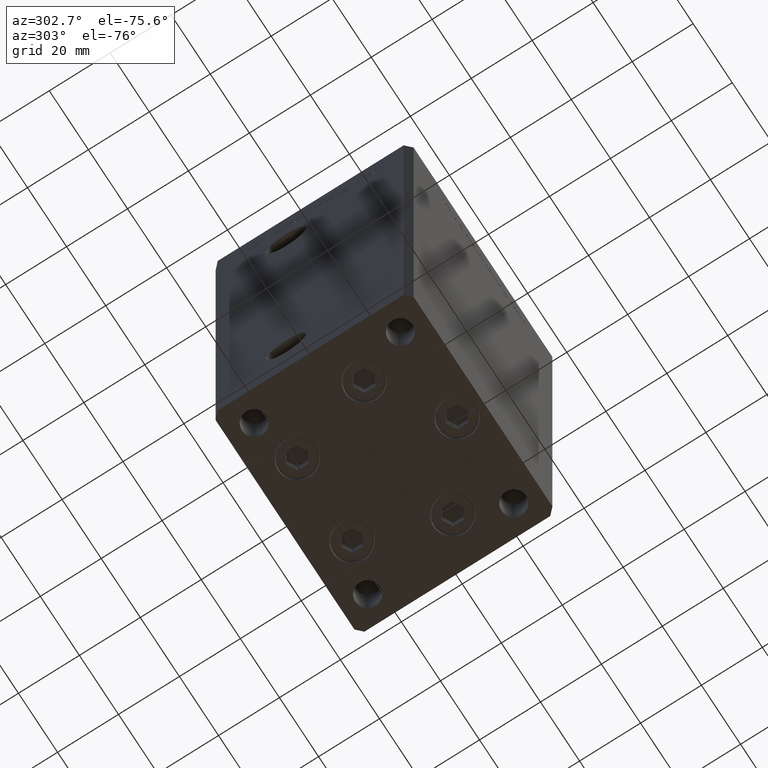
[diagram: clean part render]
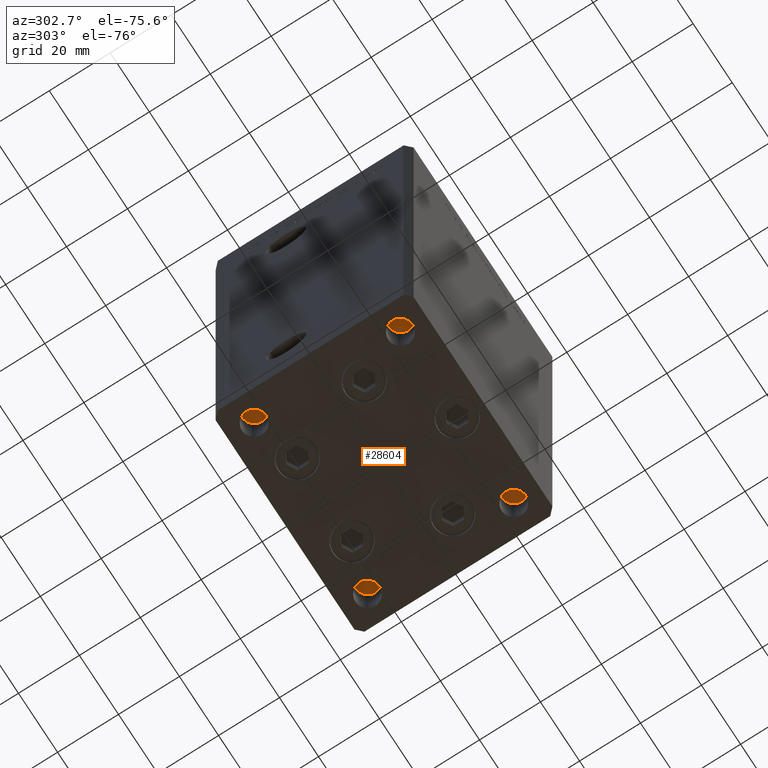
[diagram: same view with one face highlighted and labeled with its STEP entity id]
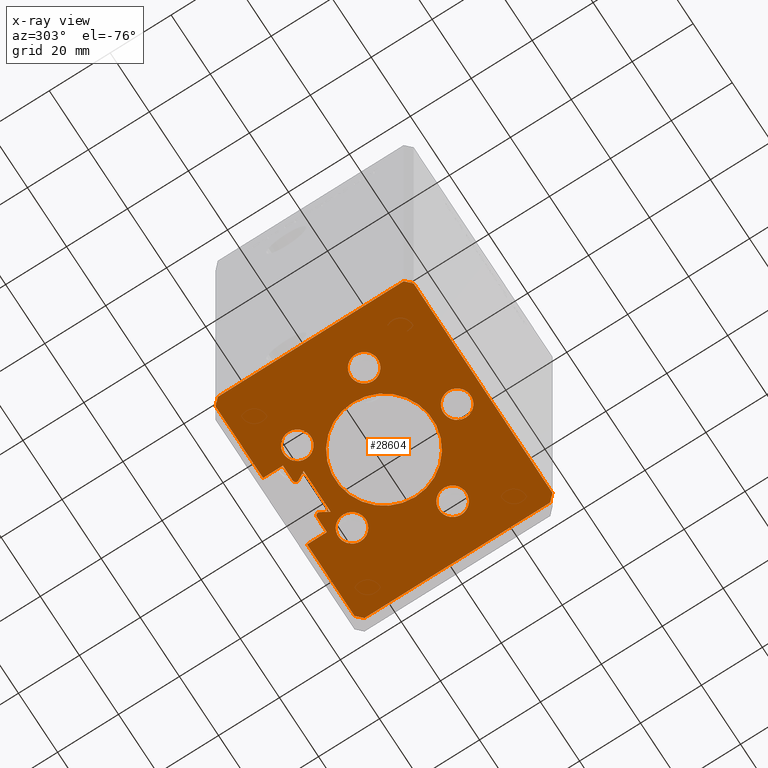
[diagram: x-ray of the same camera — body ghosted, the highlighted face saturated]
A machine part, auxiliary view. The second image highlights one B-rep face of the part: STEP entity #28604.
The next image is the same camera in x-ray: the body ghosted, the highlighted face saturated — about 0% of this face is hidden behind the body in this view.
In plain terms, the highlighted planar face has unit normal (0, 0, -1).
Its self-contained STEP definition (entity closure, byte-faithful):
#251 = FACE_BOUND ( 'NONE', #13600, .T. ) ;
#467 = DIRECTION ( 'NONE',  ( -1.000000000000000000, 0.000000000000000000, 0.000000000000000000 ) ) ;
#476 = VERTEX_POINT ( 'NONE', #6852 ) ;
#747 = LINE ( 'NONE', #4969, #42247 ) ;
#997 = AXIS2_PLACEMENT_3D ( 'NONE', #1073, #9784, #28767 ) ;
#1043 = CARTESIAN_POINT ( 'NONE',  ( 11.25000000000000178, 32.49999999999999289, 0.000000000000000000 ) ) ;
#1073 = CARTESIAN_POINT ( 'NONE',  ( -13.99106857963322170, 19.50000000000000000, 0.000000000000000000 ) ) ;
#1217 = CARTESIAN_POINT ( 'NONE',  ( 37.50000000000000711, 30.50000000000000000, 0.000000000000000000 ) ) ;
#1678 = EDGE_CURVE ( 'NONE', #33688, #43908, #23742, .T. ) ;
#1870 = DIRECTION ( 'NONE',  ( -1.000000000000000000, 0.000000000000000000, 0.000000000000000000 ) ) ;
#1999 = VECTOR ( 'NONE', #34670, 1000.000000000000000 ) ;
#2464 = CIRCLE ( 'NONE', #20982, 4.500000000000000888 ) ;
#2887 = EDGE_CURVE ( 'NONE', #28781, #27880, #27443, .T. ) ;
#3190 = EDGE_CURVE ( 'NONE', #52018, #47734, #35563, .T. ) ;
#3620 = DIRECTION ( 'NONE',  ( -0.7071067811865474617, -0.7071067811865474617, 0.000000000000000000 ) ) ;
#3658 = EDGE_CURVE ( 'NONE', #42789, #13832, #51460, .T. ) ;
#3666 = CARTESIAN_POINT ( 'NONE',  ( 4.500000000000000000, -24.00000000000000000, 0.000000000000000000 ) ) ;
#3681 = ORIENTED_EDGE ( 'NONE', *, *, #18191, .T. ) ;
#4081 = CARTESIAN_POINT ( 'NONE',  ( -16.00000000000000000, 0.000000000000000000, 0.000000000000000000 ) ) ;
#4093 = DIRECTION ( 'NONE',  ( 1.000000000000000000, -0.000000000000000000, -0.000000000000000000 ) ) ;
#4212 = ORIENTED_EDGE ( 'NONE', *, *, #38080, .T. ) ;
#4282 = VERTEX_POINT ( 'NONE', #49196 ) ;
#4303 = CARTESIAN_POINT ( 'NONE',  ( 13.99106857963322170, 19.50000000000000000, 0.000000000000000000 ) ) ;
#4527 = VERTEX_POINT ( 'NONE', #37723 ) ;
#4782 = CARTESIAN_POINT ( 'NONE',  ( -18.12741699796951877, -8.000000000000000000, 0.000000000000000000 ) ) ;
#4911 = ORIENTED_EDGE ( 'NONE', *, *, #22882, .F. ) ;
#4965 = DIRECTION ( 'NONE',  ( 0.7071067811865474617, -0.7071067811865474617, 0.000000000000000000 ) ) ;
#4969 = CARTESIAN_POINT ( 'NONE',  ( 6.876153656360466826, 21.99999999999986855, 0.000000000000000000 ) ) ;
#5273 = EDGE_CURVE ( 'NONE', #5970, #4527, #747, .T. ) ;
#5492 = CIRCLE ( 'NONE', #39161, 4.500000000000000888 ) ;
#5583 = ORIENTED_EDGE ( 'NONE', *, *, #29261, .F. ) ;
#5711 = VECTOR ( 'NONE', #38093, 1000.000000000000000 ) ;
#5732 = EDGE_CURVE ( 'NONE', #45915, #18814, #44605, .T. ) ;
#5970 = VERTEX_POINT ( 'NONE', #51684 ) ;
#6198 = VECTOR ( 'NONE', #50599, 1000.000000000000114 ) ;
#6204 = DIRECTION ( 'NONE',  ( -1.000000000000000000, 0.000000000000000000, 0.000000000000000000 ) ) ;
#6852 = CARTESIAN_POINT ( 'NONE',  ( -5.250000000000000000, 25.06666666666599141, 0.000000000000000000 ) ) ;
#6854 = ORIENTED_EDGE ( 'NONE', *, *, #27635, .F. ) ;
#7062 = VERTEX_POINT ( 'NONE', #13688 ) ;
#7124 = VECTOR ( 'NONE', #42719, 1000.000000000000000 ) ;
#7175 = VERTEX_POINT ( 'NONE', #10784 ) ;
#7306 = VERTEX_POINT ( 'NONE', #28664 ) ;
#7345 = DIRECTION ( 'NONE',  ( -0.000000000000000000, 0.000000000000000000, 1.000000000000000000 ) ) ;
#7400 = ORIENTED_EDGE ( 'NONE', *, *, #45093, .F. ) ;
#7894 = LINE ( 'NONE', #32398, #14268 ) ;
#8034 = CARTESIAN_POINT ( 'NONE',  ( 18.12741699796951877, -8.000000000000000000, 0.000000000000000000 ) ) ;
#8301 = VERTEX_POINT ( 'NONE', #8034 ) ;
#8769 = ORIENTED_EDGE ( 'NONE', *, *, #5732, .T. ) ;
#8938 = DIRECTION ( 'NONE',  ( -0.4999999999999996114, 0.8660254037844388186, 0.000000000000000000 ) ) ;
#9458 = DIRECTION ( 'NONE',  ( 0.000000000000000000, 0.000000000000000000, -1.000000000000000000 ) ) ;
#9784 = DIRECTION ( 'NONE',  ( 0.000000000000000000, 0.000000000000000000, -1.000000000000000000 ) ) ;
#10310 = DIRECTION ( 'NONE',  ( 1.000000000000000000, 0.000000000000000000, 0.000000000000000000 ) ) ;
#10315 = CARTESIAN_POINT ( 'NONE',  ( -35.49999999999999289, -32.50000000000000000, 0.000000000000000000 ) ) ;
#10784 = CARTESIAN_POINT ( 'NONE',  ( 27.12741699796952233, -8.000000000000000000, 0.000000000000000000 ) ) ;
#10801 = DIRECTION ( 'NONE',  ( 0.000000000000000000, 0.000000000000000000, -1.000000000000000000 ) ) ;
#10933 = EDGE_CURVE ( 'NONE', #11437, #42789, #18436, .T. ) ;
#11274 = ORIENTED_EDGE ( 'NONE', *, *, #13093, .T. ) ;
#11408 = DIRECTION ( 'NONE',  ( -0.4999999999999995559, -0.8660254037844388186, -0.000000000000000000 ) ) ;
#11437 = VERTEX_POINT ( 'NONE', #46724 ) ;
#11481 = CARTESIAN_POINT ( 'NONE',  ( 9.491068579633221702, 19.50000000000000000, 0.000000000000000000 ) ) ;
#12353 = DIRECTION ( 'NONE',  ( 0.000000000000000000, 0.000000000000000000, -1.000000000000000000 ) ) ;
#12525 = VERTEX_POINT ( 'NONE', #25312 ) ;
#12785 = EDGE_LOOP ( 'NONE', ( #42997, #7400 ) ) ;
#13093 = EDGE_CURVE ( 'NONE', #27880, #34516, #23582, .T. ) ;
#13187 = CARTESIAN_POINT ( 'NONE',  ( 37.49999999999999289, -30.50000000000000000, 0.000000000000000000 ) ) ;
#13336 = LINE ( 'NONE', #29929, #32694 ) ;
#13600 = EDGE_LOOP ( 'NONE', ( #15644, #39558 ) ) ;
#13688 = CARTESIAN_POINT ( 'NONE',  ( 16.00000000000000000, 1.959434878635765131E-15, 0.000000000000000000 ) ) ;
#13832 = VERTEX_POINT ( 'NONE', #38647 ) ;
#14001 = ORIENTED_EDGE ( 'NONE', *, *, #26218, .T. ) ;
#14268 = VECTOR ( 'NONE', #4965, 1000.000000000000114 ) ;
#14292 = DIRECTION ( 'NONE',  ( 0.7071067811865500152, -0.7071067811865451302, 0.000000000000000000 ) ) ;
#14820 = ORIENTED_EDGE ( 'NONE', *, *, #35171, .T. ) ;
#14830 = CIRCLE ( 'NONE', #24121, 0.9333333333340008142 ) ;
#14897 = CARTESIAN_POINT ( 'NONE',  ( 11.25000000000000178, 25.99999999999999289, 0.000000000000000000 ) ) ;
#15106 = EDGE_LOOP ( 'NONE', ( #14001, #14820, #3681, #36360, #8769, #51253, #32286, #18659, #4212, #41757, #36304, #31409, #11274, #36972, #6854, #28368, #15826, #50160, #19854 ) ) ;
#15357 = AXIS2_PLACEMENT_3D ( 'NONE', #43738, #12353, #467 ) ;
#15615 = DIRECTION ( 'NONE',  ( 1.000000000000000000, 0.000000000000000000, 0.000000000000000000 ) ) ;
#15644 = ORIENTED_EDGE ( 'NONE', *, *, #21166, .F. ) ;
#15755 = CARTESIAN_POINT ( 'NONE',  ( 0.000000000000000000, 0.000000000000000000, 0.000000000000000000 ) ) ;
#15826 = ORIENTED_EDGE ( 'NONE', *, *, #3658, .F. ) ;
#16514 = VERTEX_POINT ( 'NONE', #27891 ) ;
#17291 = CARTESIAN_POINT ( 'NONE',  ( -11.25000000000000178, 32.49999999999999289, 0.000000000000000000 ) ) ;
#17710 = CIRCLE ( 'NONE', #20239, 0.9333333333340008142 ) ;
#18179 = CARTESIAN_POINT ( 'NONE',  ( -13.99106857963322170, 19.50000000000000000, 0.000000000000000000 ) ) ;
#18182 = CARTESIAN_POINT ( 'NONE',  ( 13.99106857963322170, 19.50000000000000000, 0.000000000000000000 ) ) ;
#18191 = EDGE_CURVE ( 'NONE', #33780, #476, #41508, .T. ) ;
#18436 = LINE ( 'NONE', #34511, #6198 ) ;
#18442 = DIRECTION ( 'NONE',  ( -1.000000000000000000, 0.000000000000000000, 0.000000000000000000 ) ) ;
#18659 = ORIENTED_EDGE ( 'NONE', *, *, #47662, .T. ) ;
#18660 = VERTEX_POINT ( 'NONE', #38732 ) ;
#18814 = VERTEX_POINT ( 'NONE', #38149 ) ;
#18942 = VECTOR ( 'NONE', #30081, 1000.000000000000000 ) ;
#19190 = DIRECTION ( 'NONE',  ( 1.000000000000000000, 0.000000000000000000, 0.000000000000000000 ) ) ;
#19207 = ORIENTED_EDGE ( 'NONE', *, *, #1678, .F. ) ;
#19230 = DIRECTION ( 'NONE',  ( -1.000000000000000000, 0.000000000000000000, 0.000000000000000000 ) ) ;
#19550 = CARTESIAN_POINT ( 'NONE',  ( -37.50000000000000711, 30.50000000000000000, 0.000000000000000000 ) ) ;
#19854 = ORIENTED_EDGE ( 'NONE', *, *, #29780, .F. ) ;
#20239 = AXIS2_PLACEMENT_3D ( 'NONE', #31689, #31956, #15615 ) ;
#20293 = FACE_BOUND ( 'NONE', #38056, .T. ) ;
#20814 = CARTESIAN_POINT ( 'NONE',  ( 0.000000000000000000, 0.000000000000000000, 0.000000000000000000 ) ) ;
#20974 = DIRECTION ( 'NONE',  ( 1.000000000000000000, 0.000000000000000000, 0.000000000000000000 ) ) ;
#20982 = AXIS2_PLACEMENT_3D ( 'NONE', #22011, #34409, #6204 ) ;
#21166 = EDGE_CURVE ( 'NONE', #8301, #7175, #45015, .T. ) ;
#21517 = VECTOR ( 'NONE', #24163, 1000.000000000000000 ) ;
#22011 = CARTESIAN_POINT ( 'NONE',  ( -22.62741699796951877, -8.000000000000000000, 0.000000000000000000 ) ) ;
#22150 = VERTEX_POINT ( 'NONE', #1043 ) ;
#22380 = CIRCLE ( 'NONE', #33335, 4.500000000000000888 ) ;
#22882 = EDGE_CURVE ( 'NONE', #43536, #16514, #5492, .T. ) ;
#22957 = ORIENTED_EDGE ( 'NONE', *, *, #31708, .F. ) ;
#22988 = CARTESIAN_POINT ( 'NONE',  ( 22.62741699796951877, -8.000000000000000000, 0.000000000000000000 ) ) ;
#23060 = CARTESIAN_POINT ( 'NONE',  ( 37.50000000000000711, 30.50000000000000000, 0.000000000000000000 ) ) ;
#23107 = DIRECTION ( 'NONE',  ( -1.000000000000000000, 0.000000000000000000, 0.000000000000000000 ) ) ;
#23582 = LINE ( 'NONE', #23060, #1999 ) ;
#23655 = CARTESIAN_POINT ( 'NONE',  ( 37.49999999999999289, -30.50000000000000000, 0.000000000000000000 ) ) ;
#23742 = CIRCLE ( 'NONE', #997, 4.499999999999997335 ) ;
#24121 = AXIS2_PLACEMENT_3D ( 'NONE', #50385, #46424, #10310 ) ;
#24129 = LINE ( 'NONE', #35743, #43044 ) ;
#24163 = DIRECTION ( 'NONE',  ( -1.000000000000000000, 0.000000000000000000, 0.000000000000000000 ) ) ;
#24196 = AXIS2_PLACEMENT_3D ( 'NONE', #15755, #43701, #19190 ) ;
#24370 = AXIS2_PLACEMENT_3D ( 'NONE', #30268, #9458, #38451 ) ;
#24415 = LINE ( 'NONE', #50877, #21517 ) ;
#25312 = CARTESIAN_POINT ( 'NONE',  ( 6.183333333334001480, 25.99999999999999289, 0.000000000000000000 ) ) ;
#25882 = DIRECTION ( 'NONE',  ( 0.000000000000000000, 0.000000000000000000, -1.000000000000000000 ) ) ;
#26121 = LINE ( 'NONE', #10315, #18942 ) ;
#26187 = ORIENTED_EDGE ( 'NONE', *, *, #36897, .F. ) ;
#26218 = EDGE_CURVE ( 'NONE', #38077, #47396, #47457, .T. ) ;
#26592 = EDGE_CURVE ( 'NONE', #34516, #44457, #38712, .T. ) ;
#26632 = CARTESIAN_POINT ( 'NONE',  ( -11.25000000000000178, 25.99999999999999289, 0.000000000000000000 ) ) ;
#26869 = DIRECTION ( 'NONE',  ( -1.000000000000000000, 0.000000000000000000, 0.000000000000000000 ) ) ;
#27443 = LINE ( 'NONE', #46451, #43137 ) ;
#27635 = EDGE_CURVE ( 'NONE', #18660, #44457, #26121, .T. ) ;
#27880 = VERTEX_POINT ( 'NONE', #1217 ) ;
#27891 = CARTESIAN_POINT ( 'NONE',  ( 18.49106857963322170, 19.50000000000000000, 0.000000000000000000 ) ) ;
#28119 = CARTESIAN_POINT ( 'NONE',  ( -6.183333333334001480, 25.99999999999999289, 0.000000000000000000 ) ) ;
#28251 = CARTESIAN_POINT ( 'NONE',  ( -6.876153656360466826, 21.99999999999986855, 0.000000000000000000 ) ) ;
#28368 = ORIENTED_EDGE ( 'NONE', *, *, #41173, .F. ) ;
#28604 = ADVANCED_FACE ( 'NONE', ( #20293, #36383, #251, #31650, #47737, #43780, #37424 ), #37687, .T. ) ;
#28664 = CARTESIAN_POINT ( 'NONE',  ( 11.25000000000000178, 25.99999999999999289, 0.000000000000000000 ) ) ;
#28767 = DIRECTION ( 'NONE',  ( -1.000000000000000000, 0.000000000000000000, 0.000000000000000000 ) ) ;
#28770 = CIRCLE ( 'NONE', #30425, 4.500000000000000888 ) ;
#28781 = VERTEX_POINT ( 'NONE', #43196 ) ;
#29079 = AXIS2_PLACEMENT_3D ( 'NONE', #20814, #45846, #49549 ) ;
#29261 = EDGE_CURVE ( 'NONE', #16514, #43536, #22380, .T. ) ;
#29585 = CARTESIAN_POINT ( 'NONE',  ( 22.62741699796951877, -8.000000000000000000, 0.000000000000000000 ) ) ;
#29780 = EDGE_CURVE ( 'NONE', #38077, #11437, #24415, .T. ) ;
#29929 = CARTESIAN_POINT ( 'NONE',  ( 6.183333333334001480, 25.99999999999999289, 0.000000000000000000 ) ) ;
#30081 = DIRECTION ( 'NONE',  ( 1.000000000000000000, 0.000000000000000000, 0.000000000000000000 ) ) ;
#30268 = CARTESIAN_POINT ( 'NONE',  ( 0.000000000000000000, -24.00000000000000000, 0.000000000000000000 ) ) ;
#30425 = AXIS2_PLACEMENT_3D ( 'NONE', #29585, #25882, #38027 ) ;
#31007 = CIRCLE ( 'NONE', #36065, 4.500000000000000000 ) ;
#31042 = VECTOR ( 'NONE', #34405, 1000.000000000000000 ) ;
#31216 = EDGE_CURVE ( 'NONE', #476, #45915, #14830, .T. ) ;
#31409 = ORIENTED_EDGE ( 'NONE', *, *, #2887, .T. ) ;
#31650 = FACE_BOUND ( 'NONE', #39616, .T. ) ;
#31689 = CARTESIAN_POINT ( 'NONE',  ( 6.183333333334001480, 25.06666666666599141, 0.000000000000000000 ) ) ;
#31708 = EDGE_CURVE ( 'NONE', #43908, #33688, #34203, .T. ) ;
#31956 = DIRECTION ( 'NONE',  ( -0.000000000000000000, -0.000000000000000000, -1.000000000000000000 ) ) ;
#32103 = DIRECTION ( 'NONE',  ( 1.000000000000000000, 0.000000000000000000, 0.000000000000000000 ) ) ;
#32286 = ORIENTED_EDGE ( 'NONE', *, *, #5273, .T. ) ;
#32398 = CARTESIAN_POINT ( 'NONE',  ( -37.49999999999999289, -30.50000000000000000, 0.000000000000000000 ) ) ;
#32694 = VECTOR ( 'NONE', #20974, 1000.000000000000000 ) ;
#32885 = CIRCLE ( 'NONE', #43002, 16.00000000000000000 ) ;
#33335 = AXIS2_PLACEMENT_3D ( 'NONE', #4303, #45420, #41203 ) ;
#33688 = VERTEX_POINT ( 'NONE', #39748 ) ;
#33705 = EDGE_CURVE ( 'NONE', #7062, #47417, #41017, .T. ) ;
#33780 = VERTEX_POINT ( 'NONE', #28119 ) ;
#34203 = CIRCLE ( 'NONE', #40938, 4.499999999999997335 ) ;
#34405 = DIRECTION ( 'NONE',  ( 0.000000000000000000, 1.000000000000000000, 0.000000000000000000 ) ) ;
#34409 = DIRECTION ( 'NONE',  ( 0.000000000000000000, 0.000000000000000000, -1.000000000000000000 ) ) ;
#34511 = CARTESIAN_POINT ( 'NONE',  ( -35.50000000000000000, 32.49999999999999289, 0.000000000000000000 ) ) ;
#34516 = VERTEX_POINT ( 'NONE', #13187 ) ;
#34670 = DIRECTION ( 'NONE',  ( -2.275047181608927644E-16, -1.000000000000000000, 0.000000000000000000 ) ) ;
#35052 = LINE ( 'NONE', #50863, #48128 ) ;
#35120 = DIRECTION ( 'NONE',  ( 2.275047181608927644E-16, -1.000000000000000000, 0.000000000000000000 ) ) ;
#35171 = EDGE_CURVE ( 'NONE', #47396, #33780, #45475, .T. ) ;
#35563 = CIRCLE ( 'NONE', #15357, 4.500000000000000888 ) ;
#35743 = CARTESIAN_POINT ( 'NONE',  ( 6.876153656360466826, 21.99999999999986855, 0.000000000000000000 ) ) ;
#36065 = AXIS2_PLACEMENT_3D ( 'NONE', #42629, #50542, #23107 ) ;
#36067 = CARTESIAN_POINT ( 'NONE',  ( 0.000000000000000000, 0.000000000000000000, 0.000000000000000000 ) ) ;
#36304 = ORIENTED_EDGE ( 'NONE', *, *, #51955, .F. ) ;
#36360 = ORIENTED_EDGE ( 'NONE', *, *, #31216, .T. ) ;
#36383 = FACE_BOUND ( 'NONE', #41465, .T. ) ;
#36468 = AXIS2_PLACEMENT_3D ( 'NONE', #50165, #48025, #51728 ) ;
#36881 = CARTESIAN_POINT ( 'NONE',  ( -5.375042956467945388, 24.59999999999899245, 0.000000000000000000 ) ) ;
#36897 = EDGE_CURVE ( 'NONE', #4282, #41030, #31007, .T. ) ;
#36972 = ORIENTED_EDGE ( 'NONE', *, *, #26592, .T. ) ;
#37424 = FACE_BOUND ( 'NONE', #41075, .T. ) ;
#37687 = PLANE ( 'NONE',  #29079 ) ;
#37723 = CARTESIAN_POINT ( 'NONE',  ( 5.375042956467947164, 24.59999999999899245, 0.000000000000000000 ) ) ;
#38027 = DIRECTION ( 'NONE',  ( -1.000000000000000000, 0.000000000000000000, 0.000000000000000000 ) ) ;
#38056 = EDGE_LOOP ( 'NONE', ( #19207, #22957 ) ) ;
#38077 = VERTEX_POINT ( 'NONE', #17291 ) ;
#38080 = EDGE_CURVE ( 'NONE', #12525, #7306, #13336, .T. ) ;
#38093 = DIRECTION ( 'NONE',  ( 1.000000000000000000, -0.000000000000000000, -0.000000000000000000 ) ) ;
#38108 = LINE ( 'NONE', #14897, #31042 ) ;
#38143 = EDGE_CURVE ( 'NONE', #7306, #22150, #38108, .T. ) ;
#38149 = CARTESIAN_POINT ( 'NONE',  ( -6.876153656360466826, 21.99999999999986855, 0.000000000000000000 ) ) ;
#38451 = DIRECTION ( 'NONE',  ( -1.000000000000000000, 0.000000000000000000, 0.000000000000000000 ) ) ;
#38647 = CARTESIAN_POINT ( 'NONE',  ( -37.49999999999999289, -30.50000000000000000, 0.000000000000000000 ) ) ;
#38712 = LINE ( 'NONE', #23655, #51766 ) ;
#38732 = CARTESIAN_POINT ( 'NONE',  ( -35.49999999999999289, -32.50000000000000000, 0.000000000000000000 ) ) ;
#39161 = AXIS2_PLACEMENT_3D ( 'NONE', #18182, #10801, #26869 ) ;
#39558 = ORIENTED_EDGE ( 'NONE', *, *, #51481, .F. ) ;
#39616 = EDGE_LOOP ( 'NONE', ( #26187, #46764 ) ) ;
#39748 = CARTESIAN_POINT ( 'NONE',  ( -18.49106857963321815, 19.50000000000000000, 0.000000000000000000 ) ) ;
#40938 = AXIS2_PLACEMENT_3D ( 'NONE', #18179, #46124, #18442 ) ;
#41017 = CIRCLE ( 'NONE', #24196, 16.00000000000000000 ) ;
#41030 = VERTEX_POINT ( 'NONE', #3666 ) ;
#41075 = EDGE_LOOP ( 'NONE', ( #50296, #43835 ) ) ;
#41173 = EDGE_CURVE ( 'NONE', #13832, #18660, #7894, .T. ) ;
#41203 = DIRECTION ( 'NONE',  ( -1.000000000000000000, 0.000000000000000000, 0.000000000000000000 ) ) ;
#41465 = EDGE_LOOP ( 'NONE', ( #4911, #5583 ) ) ;
#41508 = CIRCLE ( 'NONE', #36468, 0.9333333333340008142 ) ;
#41623 = AXIS2_PLACEMENT_3D ( 'NONE', #22988, #46442, #1870 ) ;
#41684 = CARTESIAN_POINT ( 'NONE',  ( -9.491068579633225255, 19.50000000000000000, 0.000000000000000000 ) ) ;
#41757 = ORIENTED_EDGE ( 'NONE', *, *, #38143, .T. ) ;
#42247 = VECTOR ( 'NONE', #8938, 1000.000000000000114 ) ;
#42629 = CARTESIAN_POINT ( 'NONE',  ( 0.000000000000000000, -24.00000000000000000, 0.000000000000000000 ) ) ;
#42719 = DIRECTION ( 'NONE',  ( -0.000000000000000000, -1.000000000000000000, -0.000000000000000000 ) ) ;
#42789 = VERTEX_POINT ( 'NONE', #45955 ) ;
#42997 = ORIENTED_EDGE ( 'NONE', *, *, #3190, .F. ) ;
#43002 = AXIS2_PLACEMENT_3D ( 'NONE', #36067, #7345, #32103 ) ;
#43044 = VECTOR ( 'NONE', #4093, 1000.000000000000000 ) ;
#43137 = VECTOR ( 'NONE', #14292, 1000.000000000000114 ) ;
#43196 = CARTESIAN_POINT ( 'NONE',  ( 35.50000000000000000, 32.49999999999999289, 0.000000000000000000 ) ) ;
#43536 = VERTEX_POINT ( 'NONE', #11481 ) ;
#43701 = DIRECTION ( 'NONE',  ( -0.000000000000000000, 0.000000000000000000, 1.000000000000000000 ) ) ;
#43738 = CARTESIAN_POINT ( 'NONE',  ( -22.62741699796951877, -8.000000000000000000, 0.000000000000000000 ) ) ;
#43780 = FACE_OUTER_BOUND ( 'NONE', #15106, .T. ) ;
#43835 = ORIENTED_EDGE ( 'NONE', *, *, #33705, .T. ) ;
#43908 = VERTEX_POINT ( 'NONE', #41684 ) ;
#44457 = VERTEX_POINT ( 'NONE', #47416 ) ;
#44605 = LINE ( 'NONE', #28251, #50654 ) ;
#45015 = CIRCLE ( 'NONE', #41623, 4.500000000000000888 ) ;
#45093 = EDGE_CURVE ( 'NONE', #47734, #52018, #2464, .T. ) ;
#45420 = DIRECTION ( 'NONE',  ( 0.000000000000000000, 0.000000000000000000, -1.000000000000000000 ) ) ;
#45475 = LINE ( 'NONE', #45995, #5711 ) ;
#45846 = DIRECTION ( 'NONE',  ( 0.000000000000000000, 0.000000000000000000, -1.000000000000000000 ) ) ;
#45915 = VERTEX_POINT ( 'NONE', #36881 ) ;
#45955 = CARTESIAN_POINT ( 'NONE',  ( -37.50000000000000711, 30.50000000000000000, 0.000000000000000000 ) ) ;
#45972 = EDGE_CURVE ( 'NONE', #41030, #4282, #46244, .T. ) ;
#45995 = CARTESIAN_POINT ( 'NONE',  ( -6.183333333334001480, 25.99999999999999289, 0.000000000000000000 ) ) ;
#46124 = DIRECTION ( 'NONE',  ( 0.000000000000000000, 0.000000000000000000, -1.000000000000000000 ) ) ;
#46244 = CIRCLE ( 'NONE', #24370, 4.500000000000000000 ) ;
#46424 = DIRECTION ( 'NONE',  ( -0.000000000000000000, -0.000000000000000000, -1.000000000000000000 ) ) ;
#46442 = DIRECTION ( 'NONE',  ( 0.000000000000000000, 0.000000000000000000, -1.000000000000000000 ) ) ;
#46451 = CARTESIAN_POINT ( 'NONE',  ( 35.50000000000000000, 32.49999999999999289, 0.000000000000000000 ) ) ;
#46724 = CARTESIAN_POINT ( 'NONE',  ( -35.50000000000000000, 32.49999999999999289, 0.000000000000000000 ) ) ;
#46764 = ORIENTED_EDGE ( 'NONE', *, *, #45972, .F. ) ;
#47396 = VERTEX_POINT ( 'NONE', #48119 ) ;
#47416 = CARTESIAN_POINT ( 'NONE',  ( 35.49999999999999289, -32.50000000000000000, 0.000000000000000000 ) ) ;
#47417 = VERTEX_POINT ( 'NONE', #4081 ) ;
#47457 = LINE ( 'NONE', #26632, #7124 ) ;
#47662 = EDGE_CURVE ( 'NONE', #4527, #12525, #17710, .T. ) ;
#47734 = VERTEX_POINT ( 'NONE', #4782 ) ;
#47737 = FACE_BOUND ( 'NONE', #12785, .T. ) ;
#48025 = DIRECTION ( 'NONE',  ( -0.000000000000000000, -0.000000000000000000, -1.000000000000000000 ) ) ;
#48092 = VECTOR ( 'NONE', #35120, 1000.000000000000000 ) ;
#48119 = CARTESIAN_POINT ( 'NONE',  ( -11.25000000000000178, 25.99999999999999289, 0.000000000000000000 ) ) ;
#48128 = VECTOR ( 'NONE', #19230, 1000.000000000000000 ) ;
#48735 = CARTESIAN_POINT ( 'NONE',  ( -27.12741699796952233, -8.000000000000000000, 0.000000000000000000 ) ) ;
#49025 = EDGE_CURVE ( 'NONE', #47417, #7062, #32885, .T. ) ;
#49196 = CARTESIAN_POINT ( 'NONE',  ( -4.500000000000000000, -24.00000000000000000, 0.000000000000000000 ) ) ;
#49549 = DIRECTION ( 'NONE',  ( -1.000000000000000000, 0.000000000000000000, -0.000000000000000000 ) ) ;
#50160 = ORIENTED_EDGE ( 'NONE', *, *, #10933, .F. ) ;
#50165 = CARTESIAN_POINT ( 'NONE',  ( -6.183333333334001480, 25.06666666666599141, 0.000000000000000000 ) ) ;
#50211 = EDGE_CURVE ( 'NONE', #18814, #5970, #24129, .T. ) ;
#50296 = ORIENTED_EDGE ( 'NONE', *, *, #49025, .T. ) ;
#50385 = CARTESIAN_POINT ( 'NONE',  ( -6.183333333334001480, 25.06666666666599141, 0.000000000000000000 ) ) ;
#50542 = DIRECTION ( 'NONE',  ( 0.000000000000000000, 0.000000000000000000, -1.000000000000000000 ) ) ;
#50599 = DIRECTION ( 'NONE',  ( -0.7071067811865500152, -0.7071067811865451302, 0.000000000000000000 ) ) ;
#50654 = VECTOR ( 'NONE', #11408, 1000.000000000000227 ) ;
#50863 = CARTESIAN_POINT ( 'NONE',  ( -11.25000000000000178, 32.49999999999999289, 0.000000000000000000 ) ) ;
#50877 = CARTESIAN_POINT ( 'NONE',  ( -11.25000000000000178, 32.49999999999999289, 0.000000000000000000 ) ) ;
#51253 = ORIENTED_EDGE ( 'NONE', *, *, #50211, .T. ) ;
#51460 = LINE ( 'NONE', #19550, #48092 ) ;
#51481 = EDGE_CURVE ( 'NONE', #7175, #8301, #28770, .T. ) ;
#51684 = CARTESIAN_POINT ( 'NONE',  ( 6.876153656360466826, 21.99999999999986855, 0.000000000000000000 ) ) ;
#51728 = DIRECTION ( 'NONE',  ( 1.000000000000000000, 0.000000000000000000, 0.000000000000000000 ) ) ;
#51766 = VECTOR ( 'NONE', #3620, 1000.000000000000114 ) ;
#51955 = EDGE_CURVE ( 'NONE', #28781, #22150, #35052, .T. ) ;
#52018 = VERTEX_POINT ( 'NONE', #48735 ) ;